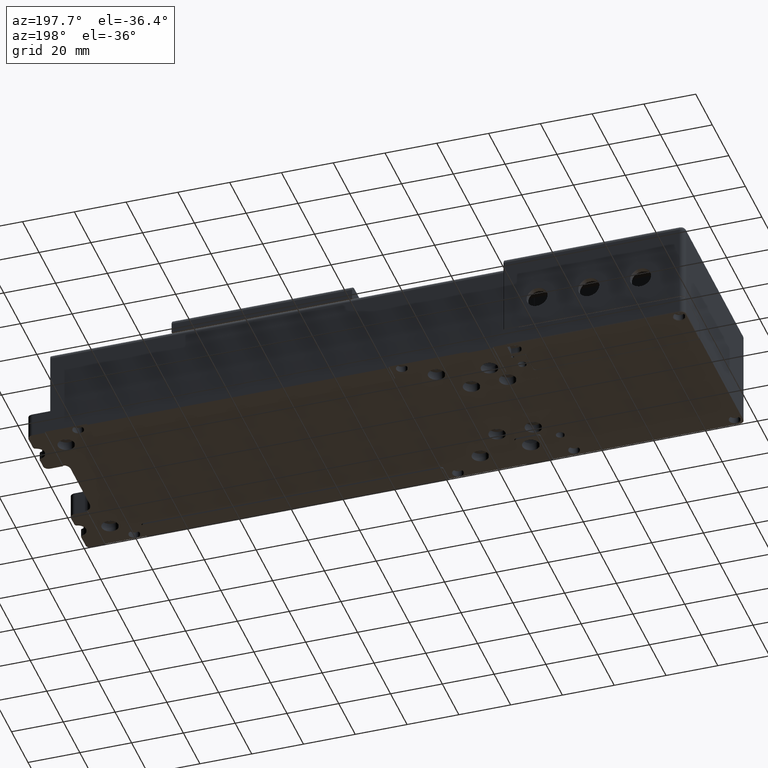
[diagram: clean part render]
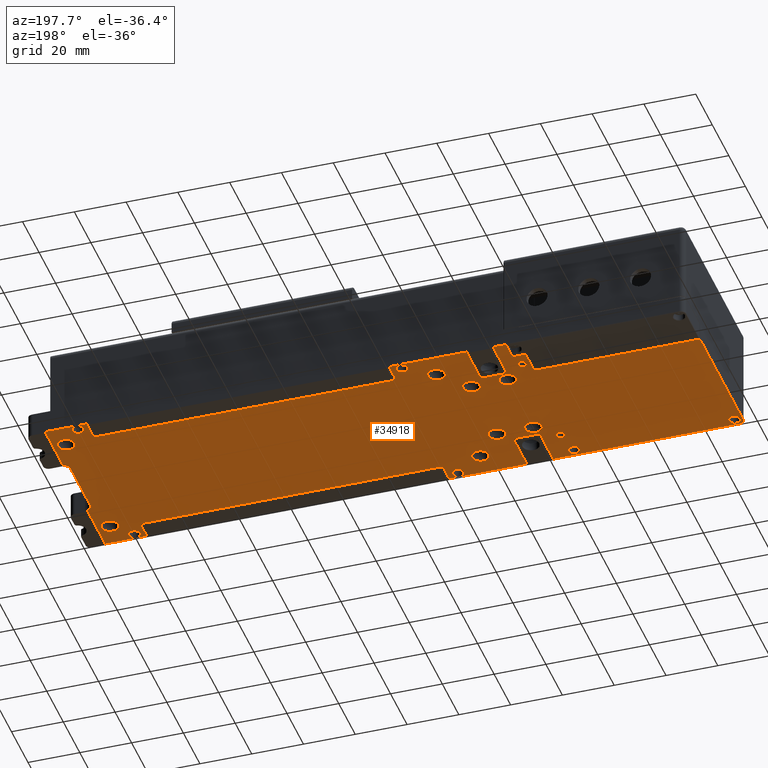
[diagram: same view with one face highlighted and labeled with its STEP entity id]
A machine part, auxiliary view. The second image highlights one B-rep face of the part: STEP entity #34918.
In plain terms, the highlighted planar face has unit normal (0, 0, 1).
Its self-contained STEP definition (entity closure, byte-faithful):
#144 = VERTEX_POINT ( 'NONE', #44678 ) ;
#219 = AXIS2_PLACEMENT_3D ( 'NONE', #2299, #44633, #50875 ) ;
#422 = CARTESIAN_POINT ( 'NONE',  ( -43.42525998140234833, -42.96919745025279980, -5.000000000000000000 ) ) ;
#440 = ORIENTED_EDGE ( 'NONE', *, *, #23017, .T. ) ;
#478 = CARTESIAN_POINT ( 'NONE',  ( 94.57474001859770851, -20.76919745025280051, -5.000000000000000000 ) ) ;
#527 = DIRECTION ( 'NONE',  ( 0.000000000000000000, 0.000000000000000000, -1.000000000000000000 ) ) ;
#918 = CARTESIAN_POINT ( 'NONE',  ( -70.42525998140229149, -29.96919745025279980, -5.000000000000000000 ) ) ;
#1089 = VERTEX_POINT ( 'NONE', #29169 ) ;
#1173 = CARTESIAN_POINT ( 'NONE',  ( -54.42525998140230570, -35.46919745025279980, -5.000000000000000000 ) ) ;
#1365 = CARTESIAN_POINT ( 'NONE',  ( -84.42525998140229149, 27.53080254974720020, -5.000000000000000000 ) ) ;
#1382 = DIRECTION ( 'NONE',  ( 0.000000000000000000, 0.000000000000000000, 1.000000000000000000 ) ) ;
#1425 = EDGE_CURVE ( 'NONE', #4892, #26271, #8951, .T. ) ;
#1427 = DIRECTION ( 'NONE',  ( -1.000000000000000000, 0.000000000000000000, 0.000000000000000000 ) ) ;
#1572 = CARTESIAN_POINT ( 'NONE',  ( -39.22525998140234549, -38.46919745025280690, -5.000000000000000000 ) ) ;
#1634 = VERTEX_POINT ( 'NONE', #25594 ) ;
#1639 = AXIS2_PLACEMENT_3D ( 'NONE', #63601, #47628, #4627 ) ;
#1708 = AXIS2_PLACEMENT_3D ( 'NONE', #52564, #5713, #26889 ) ;
#1741 = DIRECTION ( 'NONE',  ( -1.000000000000000000, 0.000000000000000000, 0.000000000000000000 ) ) ;
#1799 = CARTESIAN_POINT ( 'NONE',  ( -64.42525998140230570, 6.530802549747209973, -5.000000000000000000 ) ) ;
#1805 = VECTOR ( 'NONE', #63704, 1000.000000000000000 ) ;
#2065 = DIRECTION ( 'NONE',  ( 0.000000000000000000, 0.000000000000000000, -1.000000000000000000 ) ) ;
#2068 = CARTESIAN_POINT ( 'NONE',  ( 79.37474001859770567, 25.03080254974720020, -5.000000000000000000 ) ) ;
#2092 = CARTESIAN_POINT ( 'NONE',  ( 77.37474001859770567, -38.46919745025280690, -5.000000000000000000 ) ) ;
#2203 = EDGE_CURVE ( 'NONE', #21586, #24176, #15068, .T. ) ;
#2217 = ORIENTED_EDGE ( 'NONE', *, *, #67392, .T. ) ;
#2262 = AXIS2_PLACEMENT_3D ( 'NONE', #5020, #61948, #46655 ) ;
#2299 = CARTESIAN_POINT ( 'NONE',  ( 76.37474001859770567, 20.53080254974720020, -5.000000000000000000 ) ) ;
#2376 = CARTESIAN_POINT ( 'NONE',  ( -45.62525998140240091, -42.96919745025279980, -5.000000000000000000 ) ) ;
#2451 = CIRCLE ( 'NONE', #33516, 2.200000000000000622 ) ;
#2515 = AXIS2_PLACEMENT_3D ( 'NONE', #29027, #39779, #50534 ) ;
#2557 = VERTEX_POINT ( 'NONE', #43348 ) ;
#2616 = VERTEX_POINT ( 'NONE', #2376 ) ;
#2653 = FACE_BOUND ( 'NONE', #15962, .T. ) ;
#2739 = DIRECTION ( 'NONE',  ( -1.000000000000000000, 0.000000000000000000, 0.000000000000000000 ) ) ;
#2757 = CARTESIAN_POINT ( 'NONE',  ( -64.42525998140230570, -24.46919745025279980, -5.000000000000000000 ) ) ;
#2831 = VECTOR ( 'NONE', #39261, 1000.000000000000000 ) ;
#2888 = EDGE_CURVE ( 'NONE', #37987, #61376, #31485, .T. ) ;
#2950 = EDGE_CURVE ( 'NONE', #33482, #30816, #56126, .T. ) ;
#2951 = CARTESIAN_POINT ( 'NONE',  ( 77.37474001859770567, 20.53080254974720020, -5.000000000000000000 ) ) ;
#2954 = LINE ( 'NONE', #33857, #10187 ) ;
#3049 = CARTESIAN_POINT ( 'NONE',  ( -153.4252599814024904, 9.030802549747210861, -5.000000000000000000 ) ) ;
#3088 = DIRECTION ( 'NONE',  ( -1.000000000000000000, 0.000000000000000000, 0.000000000000000000 ) ) ;
#3259 = CIRCLE ( 'NONE', #56469, 3.000000000000002665 ) ;
#3598 = DIRECTION ( 'NONE',  ( 0.000000000000000000, -1.000000000000000000, 0.000000000000000000 ) ) ;
#3810 = EDGE_LOOP ( 'NONE', ( #4494, #6421 ) ) ;
#3859 = CIRCLE ( 'NONE', #18285, 3.250000000000002665 ) ;
#4024 = VERTEX_POINT ( 'NONE', #4356 ) ;
#4160 = EDGE_CURVE ( 'NONE', #20400, #49840, #68262, .T. ) ;
#4214 = CARTESIAN_POINT ( 'NONE',  ( 77.37474001859770567, 27.53080254974720020, -5.000000000000000000 ) ) ;
#4356 = CARTESIAN_POINT ( 'NONE',  ( -39.22525998140229575, 27.53080254974720020, -5.000000000000000000 ) ) ;
#4417 = DIRECTION ( 'NONE',  ( 0.000000000000000000, 0.000000000000000000, 1.000000000000000000 ) ) ;
#4424 = DIRECTION ( 'NONE',  ( -1.000000000000000000, 0.000000000000000000, 0.000000000000000000 ) ) ;
#4494 = ORIENTED_EDGE ( 'NONE', *, *, #40355, .F. ) ;
#4627 = DIRECTION ( 'NONE',  ( -1.000000000000000000, 0.000000000000000000, 0.000000000000000000 ) ) ;
#4632 = EDGE_CURVE ( 'NONE', #49965, #45408, #21750, .T. ) ;
#4835 = CARTESIAN_POINT ( 'NONE',  ( -78.42525998140240517, -28.96919745025279980, -5.000000000000000000 ) ) ;
#4892 = VERTEX_POINT ( 'NONE', #13597 ) ;
#4973 = AXIS2_PLACEMENT_3D ( 'NONE', #2757, #12507, #22914 ) ;
#5020 = CARTESIAN_POINT ( 'NONE',  ( -38.22525998140230286, 20.53080254974720020, -5.000000000000000000 ) ) ;
#5182 = EDGE_CURVE ( 'NONE', #54862, #60655, #38148, .T. ) ;
#5199 = CARTESIAN_POINT ( 'NONE',  ( -69.42525998140229149, 12.03080254974720020, -5.000000000000000000 ) ) ;
#5237 = CARTESIAN_POINT ( 'NONE',  ( -67.67525998140230570, 6.530802549747209973, -5.000000000000000000 ) ) ;
#5252 = EDGE_CURVE ( 'NONE', #65141, #8254, #7955, .T. ) ;
#5310 = ORIENTED_EDGE ( 'NONE', *, *, #11199, .F. ) ;
#5481 = CARTESIAN_POINT ( 'NONE',  ( 77.37474001859770567, -45.46919745025279980, -5.000000000000000000 ) ) ;
#5495 = DIRECTION ( 'NONE',  ( 0.000000000000000000, 0.000000000000000000, 1.000000000000000000 ) ) ;
#5570 = DIRECTION ( 'NONE',  ( 0.000000000000000000, 0.000000000000000000, -1.000000000000000000 ) ) ;
#5622 = AXIS2_PLACEMENT_3D ( 'NONE', #918, #54014, #59906 ) ;
#5637 = CARTESIAN_POINT ( 'NONE',  ( -45.62525998140230143, 25.03080254974720020, -5.000000000000000000 ) ) ;
#5671 = AXIS2_PLACEMENT_3D ( 'NONE', #66426, #55305, #44542 ) ;
#5713 = DIRECTION ( 'NONE',  ( 0.000000000000000000, 0.000000000000000000, -1.000000000000000000 ) ) ;
#5834 = DIRECTION ( 'NONE',  ( 1.000000000000000000, 0.000000000000000000, 1.749495427353365070E-17 ) ) ;
#5914 = DIRECTION ( 'NONE',  ( -3.469446951953610245E-15, -1.000000000000000000, 0.000000000000000000 ) ) ;
#5917 = EDGE_CURVE ( 'NONE', #14842, #2616, #46150, .T. ) ;
#6024 = CARTESIAN_POINT ( 'NONE',  ( -84.42525998140229149, 19.53080254974720020, -5.000000000000000000 ) ) ;
#6142 = EDGE_LOOP ( 'NONE', ( #42419, #52542 ) ) ;
#6179 = LINE ( 'NONE', #54408, #24735 ) ;
#6227 = VECTOR ( 'NONE', #46752, 1000.000000000000000 ) ;
#6402 = AXIS2_PLACEMENT_3D ( 'NONE', #30128, #4417, #61339 ) ;
#6421 = ORIENTED_EDGE ( 'NONE', *, *, #60935, .F. ) ;
#6729 = EDGE_CURVE ( 'NONE', #21586, #53457, #38769, .T. ) ;
#6826 = EDGE_CURVE ( 'NONE', #22875, #24863, #62903, .T. ) ;
#6941 = EDGE_LOOP ( 'NONE', ( #24558, #33334 ) ) ;
#6959 = DIRECTION ( 'NONE',  ( 0.000000000000000000, 0.000000000000000000, -1.000000000000000000 ) ) ;
#6989 = AXIS2_PLACEMENT_3D ( 'NONE', #23669, #27838, #7017 ) ;
#6991 = CARTESIAN_POINT ( 'NONE',  ( -88.42525998140230570, -42.46919745025279980, -5.000000000000000000 ) ) ;
#7017 = DIRECTION ( 'NONE',  ( 1.000000000000000000, 0.000000000000000000, 0.000000000000000000 ) ) ;
#7070 = ORIENTED_EDGE ( 'NONE', *, *, #17478, .F. ) ;
#7119 = EDGE_CURVE ( 'NONE', #61922, #18829, #68515, .T. ) ;
#7267 = EDGE_CURVE ( 'NONE', #13987, #1634, #34179, .T. ) ;
#7389 = CIRCLE ( 'NONE', #64995, 1.000000000000000888 ) ;
#7393 = CIRCLE ( 'NONE', #62772, 1.649999999999998579 ) ;
#7481 = ORIENTED_EDGE ( 'NONE', *, *, #52628, .F. ) ;
#7618 = AXIS2_PLACEMENT_3D ( 'NONE', #1173, #31147, #4424 ) ;
#7675 = DIRECTION ( 'NONE',  ( 0.000000000000000000, 0.000000000000000000, 1.000000000000000000 ) ) ;
#7955 = LINE ( 'NONE', #50965, #60462 ) ;
#8002 = EDGE_CURVE ( 'NONE', #24863, #22875, #40852, .T. ) ;
#8124 = ORIENTED_EDGE ( 'NONE', *, *, #18989, .F. ) ;
#8206 = EDGE_CURVE ( 'NONE', #67625, #11576, #53076, .T. ) ;
#8230 = DIRECTION ( 'NONE',  ( 0.000000000000000000, 0.000000000000000000, -1.000000000000000000 ) ) ;
#8254 = VERTEX_POINT ( 'NONE', #41543 ) ;
#8293 = ORIENTED_EDGE ( 'NONE', *, *, #66759, .F. ) ;
#8567 = FACE_OUTER_BOUND ( 'NONE', #24216, .T. ) ;
#8853 = LINE ( 'NONE', #57752, #13128 ) ;
#8951 = LINE ( 'NONE', #40862, #13883 ) ;
#8958 = VECTOR ( 'NONE', #19475, 1000.000000000000000 ) ;
#8984 = CARTESIAN_POINT ( 'NONE',  ( -88.07525998140229717, 14.03080254974720020, -5.000000000000000000 ) ) ;
#9056 = ORIENTED_EDGE ( 'NONE', *, *, #54215, .F. ) ;
#9215 = ORIENTED_EDGE ( 'NONE', *, *, #8002, .F. ) ;
#9396 = EDGE_CURVE ( 'NONE', #67876, #29121, #17826, .T. ) ;
#9701 = CARTESIAN_POINT ( 'NONE',  ( 88.57474001859770851, -35.46919745025279980, -5.000000000000000000 ) ) ;
#9803 = CARTESIAN_POINT ( 'NONE',  ( 83.77474001859771136, 25.03080254974720020, -5.000000000000000000 ) ) ;
#9882 = EDGE_CURVE ( 'NONE', #30816, #33482, #30073, .T. ) ;
#9888 = EDGE_CURVE ( 'NONE', #24263, #21564, #65523, .T. ) ;
#10187 = VECTOR ( 'NONE', #44599, 1000.000000000000000 ) ;
#10205 = CARTESIAN_POINT ( 'NONE',  ( 77.37474001859770567, 27.53080254974720020, -5.000000000000000000 ) ) ;
#10237 = VERTEX_POINT ( 'NONE', #38835 ) ;
#10329 = DIRECTION ( 'NONE',  ( 0.000000000000000000, 0.000000000000000000, 1.000000000000000000 ) ) ;
#10462 = ORIENTED_EDGE ( 'NONE', *, *, #65325, .F. ) ;
#10656 = AXIS2_PLACEMENT_3D ( 'NONE', #6024, #34814, #50778 ) ;
#10737 = ORIENTED_EDGE ( 'NONE', *, *, #22115, .F. ) ;
#10760 = VERTEX_POINT ( 'NONE', #34919 ) ;
#10793 = CARTESIAN_POINT ( 'NONE',  ( -43.42525998140229859, 25.03080254974720020, -5.000000000000000000 ) ) ;
#10922 = AXIS2_PLACEMENT_3D ( 'NONE', #42741, #48278, #1427 ) ;
#11122 = ORIENTED_EDGE ( 'NONE', *, *, #9396, .T. ) ;
#11199 = EDGE_CURVE ( 'NONE', #14679, #65576, #29989, .T. ) ;
#11260 = AXIS2_PLACEMENT_3D ( 'NONE', #41261, #61750, #50988 ) ;
#11303 = VERTEX_POINT ( 'NONE', #57374 ) ;
#11415 = CARTESIAN_POINT ( 'NONE',  ( -89.42525998140230570, 27.53080254974720020, -5.000000000000000000 ) ) ;
#11576 = VERTEX_POINT ( 'NONE', #60513 ) ;
#11631 = DIRECTION ( 'NONE',  ( 0.000000000000000000, 0.000000000000000000, 1.000000000000000000 ) ) ;
#11818 = CARTESIAN_POINT ( 'NONE',  ( -86.42525998140229149, 14.03080254974720020, -5.000000000000000000 ) ) ;
#11900 = ORIENTED_EDGE ( 'NONE', *, *, #46593, .T. ) ;
#12120 = CARTESIAN_POINT ( 'NONE',  ( 81.57474001859770851, -42.96919745025279980, -5.000000000000000000 ) ) ;
#12129 = CIRCLE ( 'NONE', #15447, 3.250000000000002665 ) ;
#12236 = DIRECTION ( 'NONE',  ( 0.000000000000000000, 0.000000000000000000, -1.000000000000000000 ) ) ;
#12282 = AXIS2_PLACEMENT_3D ( 'NONE', #23840, #34926, #28697 ) ;
#12395 = DIRECTION ( 'NONE',  ( 1.000000000000000000, 0.000000000000000000, 0.000000000000000000 ) ) ;
#12507 = DIRECTION ( 'NONE',  ( 0.000000000000000000, 0.000000000000000000, -1.000000000000000000 ) ) ;
#12747 = CARTESIAN_POINT ( 'NONE',  ( -41.22525998140230286, 25.03080254974720020, -5.000000000000000000 ) ) ;
#13096 = FACE_BOUND ( 'NONE', #39231, .T. ) ;
#13128 = VECTOR ( 'NONE', #19625, 1000.000000000000000 ) ;
#13209 = CARTESIAN_POINT ( 'NONE',  ( -84.92525998140229149, 19.53080254974720020, -5.000000000000000000 ) ) ;
#13269 = DIRECTION ( 'NONE',  ( -1.000000000000000000, 0.000000000000000000, 0.000000000000000000 ) ) ;
#13286 = CIRCLE ( 'NONE', #43183, 2.199999999999993516 ) ;
#13526 = CARTESIAN_POINT ( 'NONE',  ( -54.42525998140230570, -35.46919745025279980, -5.000000000000000000 ) ) ;
#13597 = CARTESIAN_POINT ( 'NONE',  ( -69.42525998140229149, -45.46919745025279980, -5.000000000000000000 ) ) ;
#13883 = VECTOR ( 'NONE', #40520, 1000.000000000000000 ) ;
#13987 = VERTEX_POINT ( 'NONE', #32206 ) ;
#14059 = ORIENTED_EDGE ( 'NONE', *, *, #6826, .F. ) ;
#14470 = DIRECTION ( 'NONE',  ( -1.000000000000000000, 7.438779914137249619E-18, 0.000000000000000000 ) ) ;
#14550 = CIRCLE ( 'NONE', #57734, 3.000000000000002665 ) ;
#14570 = CARTESIAN_POINT ( 'NONE',  ( 93.57474001859770851, 5.830802549747209795, -5.000000000000000000 ) ) ;
#14679 = VERTEX_POINT ( 'NONE', #22581 ) ;
#14724 = DIRECTION ( 'NONE',  ( 0.000000000000000000, -1.000000000000000000, 0.000000000000000000 ) ) ;
#14778 = CIRCLE ( 'NONE', #22555, 3.250000000000002665 ) ;
#14842 = VERTEX_POINT ( 'NONE', #34698 ) ;
#14863 = ORIENTED_EDGE ( 'NONE', *, *, #36584, .F. ) ;
#14949 = CARTESIAN_POINT ( 'NONE',  ( -78.42525998140230570, 6.530802549747209973, -5.000000000000000000 ) ) ;
#15068 = CIRCLE ( 'NONE', #10656, 0.5000000000000004441 ) ;
#15417 = CARTESIAN_POINT ( 'NONE',  ( -79.42525998140240517, -45.46919745025279980, -5.000000000000000000 ) ) ;
#15447 = AXIS2_PLACEMENT_3D ( 'NONE', #9701, #36747, #35381 ) ;
#15535 = CARTESIAN_POINT ( 'NONE',  ( 79.37474001859770567, -42.96919745025279980, -5.000000000000000000 ) ) ;
#15617 = EDGE_LOOP ( 'NONE', ( #65170, #27322 ) ) ;
#15735 = DIRECTION ( 'NONE',  ( 0.000000000000000000, 0.000000000000000000, -1.000000000000000000 ) ) ;
#15837 = CARTESIAN_POINT ( 'NONE',  ( 93.57474001859770851, 5.830802549747209795, -5.000000000000000000 ) ) ;
#15871 = CARTESIAN_POINT ( 'NONE',  ( 93.57474001859770851, -23.76919745025280051, -5.000000000000000000 ) ) ;
#15901 = EDGE_CURVE ( 'NONE', #144, #26627, #40155, .T. ) ;
#15913 = CARTESIAN_POINT ( 'NONE',  ( -88.42525998140230570, -42.46919745025279980, -5.000000000000000000 ) ) ;
#15935 = VERTEX_POINT ( 'NONE', #50528 ) ;
#15957 = VERTEX_POINT ( 'NONE', #23484 ) ;
#15962 = EDGE_LOOP ( 'NONE', ( #7481, #8293 ) ) ;
#16240 = EDGE_LOOP ( 'NONE', ( #56579, #14863 ) ) ;
#16294 = ORIENTED_EDGE ( 'NONE', *, *, #56169, .T. ) ;
#16505 = EDGE_LOOP ( 'NONE', ( #10737, #67732 ) ) ;
#16896 = CARTESIAN_POINT ( 'NONE',  ( -78.42525998140230570, 6.530802549747209973, -5.000000000000000000 ) ) ;
#16903 = VERTEX_POINT ( 'NONE', #46868 ) ;
#17037 = CARTESIAN_POINT ( 'NONE',  ( 77.37474001859759198, -45.46919745025279980, -5.000000000000000000 ) ) ;
#17054 = VERTEX_POINT ( 'NONE', #58988 ) ;
#17183 = CARTESIAN_POINT ( 'NONE',  ( -78.42525998140230570, -24.46919745025279980, -5.000000000000000000 ) ) ;
#17255 = CIRCLE ( 'NONE', #37205, 3.250000000000002665 ) ;
#17331 = EDGE_CURVE ( 'NONE', #11303, #55314, #66614, .T. ) ;
#17350 = DIRECTION ( 'NONE',  ( 1.000000000000000000, 0.000000000000000000, 1.749495427353365070E-17 ) ) ;
#17478 = EDGE_CURVE ( 'NONE', #21564, #24263, #19315, .T. ) ;
#17670 = AXIS2_PLACEMENT_3D ( 'NONE', #64517, #64171, #31566 ) ;
#17826 = CIRCLE ( 'NONE', #5622, 1.000000000000000888 ) ;
#18035 = VERTEX_POINT ( 'NONE', #4214 ) ;
#18141 = CARTESIAN_POINT ( 'NONE',  ( -78.42525998140240517, -29.96919745025279980, -5.000000000000000000 ) ) ;
#18192 = ORIENTED_EDGE ( 'NONE', *, *, #1425, .F. ) ;
#18248 = VERTEX_POINT ( 'NONE', #5237 ) ;
#18285 = AXIS2_PLACEMENT_3D ( 'NONE', #29119, #50268, #2739 ) ;
#18330 = EDGE_CURVE ( 'NONE', #10760, #55273, #64822, .T. ) ;
#18456 = CARTESIAN_POINT ( 'NONE',  ( -81.67525998140230570, 6.530802549747209973, -5.000000000000000000 ) ) ;
#18647 = FACE_BOUND ( 'NONE', #3810, .T. ) ;
#18672 = ORIENTED_EDGE ( 'NONE', *, *, #55927, .T. ) ;
#18815 = CARTESIAN_POINT ( 'NONE',  ( 93.57474001859770851, 27.53080254974720020, -5.000000000000000000 ) ) ;
#18829 = VERTEX_POINT ( 'NONE', #28714 ) ;
#18862 = VECTOR ( 'NONE', #14470, 1000.000000000000000 ) ;
#18925 = VECTOR ( 'NONE', #54268, 1000.000000000000000 ) ;
#18989 = EDGE_CURVE ( 'NONE', #47203, #37435, #31447, .T. ) ;
#19315 = CIRCLE ( 'NONE', #61397, 3.250000000000002665 ) ;
#19428 = ORIENTED_EDGE ( 'NONE', *, *, #20543, .F. ) ;
#19475 = DIRECTION ( 'NONE',  ( 1.000000000000000000, 0.000000000000000000, 0.000000000000000000 ) ) ;
#19625 = DIRECTION ( 'NONE',  ( 0.000000000000000000, -1.000000000000000000, 0.000000000000000000 ) ) ;
#19901 = AXIS2_PLACEMENT_3D ( 'NONE', #28446, #39544, #23944 ) ;
#19966 = CIRCLE ( 'NONE', #44365, 3.250000000000002665 ) ;
#20281 = DIRECTION ( 'NONE',  ( -1.000000000000000000, 0.000000000000000000, 0.000000000000000000 ) ) ;
#20400 = VERTEX_POINT ( 'NONE', #48429 ) ;
#20543 = EDGE_CURVE ( 'NONE', #67876, #4892, #8853, .T. ) ;
#20589 = DIRECTION ( 'NONE',  ( -1.000000000000000000, 0.000000000000000000, 0.000000000000000000 ) ) ;
#20595 = DIRECTION ( 'NONE',  ( 0.000000000000000000, 0.000000000000000000, 1.000000000000000000 ) ) ;
#20764 = ORIENTED_EDGE ( 'NONE', *, *, #21571, .T. ) ;
#20995 = ORIENTED_EDGE ( 'NONE', *, *, #37047, .F. ) ;
#21026 = VERTEX_POINT ( 'NONE', #9803 ) ;
#21061 = CARTESIAN_POINT ( 'NONE',  ( 88.57474001859770851, -35.46919745025279980, -5.000000000000000000 ) ) ;
#21068 = CARTESIAN_POINT ( 'NONE',  ( 83.77474001859771136, -42.96919745025279980, -5.000000000000000000 ) ) ;
#21135 = CARTESIAN_POINT ( 'NONE',  ( -84.77525998140230001, -31.96919745025280335, -5.000000000000000000 ) ) ;
#21205 = VERTEX_POINT ( 'NONE', #58348 ) ;
#21261 = VECTOR ( 'NONE', #3598, 1000.000000000000000 ) ;
#21293 = DIRECTION ( 'NONE',  ( -1.000000000000000000, 0.000000000000000000, 0.000000000000000000 ) ) ;
#21496 = CARTESIAN_POINT ( 'NONE',  ( -148.2252599814023881, -42.46919745025279980, -5.000000000000000000 ) ) ;
#21553 = DIRECTION ( 'NONE',  ( -1.000000000000000000, 0.000000000000000000, 0.000000000000000000 ) ) ;
#21564 = VERTEX_POINT ( 'NONE', #57156 ) ;
#21571 = EDGE_CURVE ( 'NONE', #63081, #60441, #39653, .T. ) ;
#21586 = VERTEX_POINT ( 'NONE', #35655 ) ;
#21593 = CARTESIAN_POINT ( 'NONE',  ( -75.17525998140230570, 6.530802549747209973, -5.000000000000000000 ) ) ;
#21745 = CARTESIAN_POINT ( 'NONE',  ( 85.32474001859770851, 17.53080254974720020, -5.000000000000000000 ) ) ;
#21750 = CIRCLE ( 'NONE', #61664, 1.649999999999998579 ) ;
#21749 = CIRCLE ( 'NONE', #47189, 1.649999999999998579 ) ;
#21870 = CIRCLE ( 'NONE', #49530, 2.199999999999993516 ) ;
#22115 = EDGE_CURVE ( 'NONE', #2616, #14842, #41983, .T. ) ;
#22116 = CARTESIAN_POINT ( 'NONE',  ( -78.42525998140230570, 12.03080254974720020, -5.000000000000000000 ) ) ;
#22246 = LINE ( 'NONE', #15417, #52121 ) ;
#22389 = CARTESIAN_POINT ( 'NONE',  ( -79.42525998140240517, -45.46919745025279980, -5.000000000000000000 ) ) ;
#22452 = ORIENTED_EDGE ( 'NONE', *, *, #24438, .F. ) ;
#22506 = EDGE_CURVE ( 'NONE', #23133, #18248, #64172, .T. ) ;
#22555 = AXIS2_PLACEMENT_3D ( 'NONE', #13526, #2065, #54472 ) ;
#22581 = CARTESIAN_POINT ( 'NONE',  ( -69.42525998140229149, 27.53080254974720020, -5.000000000000000000 ) ) ;
#22846 = CIRCLE ( 'NONE', #60529, 3.250000000000002665 ) ;
#22867 = DIRECTION ( 'NONE',  ( -1.000000000000000000, 0.000000000000000000, 0.000000000000000000 ) ) ;
#22875 = VERTEX_POINT ( 'NONE', #15535 ) ;
#22914 = DIRECTION ( 'NONE',  ( -1.000000000000000000, 0.000000000000000000, 0.000000000000000000 ) ) ;
#23011 = DIRECTION ( 'NONE',  ( 1.000000000000000000, 0.000000000000000000, 0.000000000000000000 ) ) ;
#23017 = EDGE_CURVE ( 'NONE', #11303, #65576, #54253, .T. ) ;
#23096 = CARTESIAN_POINT ( 'NONE',  ( 93.57474001859770851, -23.76919745025280051, -5.000000000000000000 ) ) ;
#23133 = VERTEX_POINT ( 'NONE', #30862 ) ;
#23163 = CARTESIAN_POINT ( 'NONE',  ( -153.4252599814024904, 26.03080254974719665, -5.000000000000000000 ) ) ;
#23484 = CARTESIAN_POINT ( 'NONE',  ( 85.32474001859770851, -35.46919745025279980, -5.000000000000000000 ) ) ;
#23510 = LINE ( 'NONE', #23163, #59141 ) ;
#23537 = EDGE_CURVE ( 'NONE', #144, #47646, #36307, .T. ) ;
#23669 = CARTESIAN_POINT ( 'NONE',  ( -90.42525998140230570, 10.03080254974721974, -5.000000000000000000 ) ) ;
#23727 = CARTESIAN_POINT ( 'NONE',  ( 91.57474001859770851, 27.53080254974720020, -5.000000000000000000 ) ) ;
#23840 = CARTESIAN_POINT ( 'NONE',  ( -153.4252599814024904, 26.03080254974719665, -5.000000000000000000 ) ) ;
#23847 = CIRCLE ( 'NONE', #62625, 2.199999999999993516 ) ;
#23855 = CARTESIAN_POINT ( 'NONE',  ( -43.42525998140229859, 25.03080254974720020, -5.000000000000000000 ) ) ;
#23912 = DIRECTION ( 'NONE',  ( 1.000000000000000000, 0.000000000000000000, 0.000000000000000000 ) ) ;
#23944 = DIRECTION ( 'NONE',  ( 1.000000000000000000, 0.000000000000000000, 0.000000000000000000 ) ) ;
#24053 = EDGE_CURVE ( 'NONE', #35172, #57569, #22246, .T. ) ;
#24140 = LINE ( 'NONE', #45282, #28189 ) ;
#24176 = VERTEX_POINT ( 'NONE', #13209 ) ;
#24216 = EDGE_LOOP ( 'NONE', ( #20995, #42209, #63513, #20764, #54527, #18192, #19428, #11122, #50498, #11900, #42596, #22452, #18672, #27475, #49833, #62898, #39975, #37419, #25209, #58194, #49103, #66474, #2217, #60408, #440, #5310, #60651, #64350, #32243, #29034, #31997, #36356, #49240, #43295, #8124, #26972, #66869, #38714, #36971, #66361, #46182 ) ) ;
#24263 = VERTEX_POINT ( 'NONE', #34703 ) ;
#24438 = EDGE_CURVE ( 'NONE', #27363, #35172, #6179, .T. ) ;
#24545 = DIRECTION ( 'NONE',  ( 0.000000000000000000, 0.000000000000000000, -1.000000000000000000 ) ) ;
#24558 = ORIENTED_EDGE ( 'NONE', *, *, #57360, .F. ) ;
#24566 = CARTESIAN_POINT ( 'NONE',  ( 94.57474001859770851, -23.76919745025280051, -5.000000000000000000 ) ) ;
#24735 = VECTOR ( 'NONE', #5834, 1000.000000000000000 ) ;
#24863 = VERTEX_POINT ( 'NONE', #21068 ) ;
#25209 = ORIENTED_EDGE ( 'NONE', *, *, #2203, .F. ) ;
#25594 = CARTESIAN_POINT ( 'NONE',  ( 91.57474001859770851, 2.830802549747215124, -5.000000000000000000 ) ) ;
#25745 = ORIENTED_EDGE ( 'NONE', *, *, #34413, .F. ) ;
#26211 = AXIS2_PLACEMENT_3D ( 'NONE', #16896, #55029, #54689 ) ;
#26254 = EDGE_LOOP ( 'NONE', ( #9056, #25745 ) ) ;
#26271 = VERTEX_POINT ( 'NONE', #49041 ) ;
#26276 = CARTESIAN_POINT ( 'NONE',  ( 93.57474001859770851, 27.53080254974720020, -5.000000000000000000 ) ) ;
#26326 = CARTESIAN_POINT ( 'NONE',  ( -79.42525998140240517, -29.96919745025279980, -5.000000000000000000 ) ) ;
#26470 = EDGE_CURVE ( 'NONE', #40378, #41291, #38271, .T. ) ;
#26551 = EDGE_CURVE ( 'NONE', #58821, #33944, #21749, .T. ) ;
#26627 = VERTEX_POINT ( 'NONE', #2951 ) ;
#26670 = DIRECTION ( 'NONE',  ( 1.000000000000000000, 0.000000000000000000, 0.000000000000000000 ) ) ;
#26889 = DIRECTION ( 'NONE',  ( -1.000000000000000000, 0.000000000000000000, 0.000000000000000000 ) ) ;
#26972 = ORIENTED_EDGE ( 'NONE', *, *, #47633, .T. ) ;
#27322 = ORIENTED_EDGE ( 'NONE', *, *, #9882, .F. ) ;
#27329 = DIRECTION ( 'NONE',  ( 0.000000000000000000, 1.000000000000000000, 0.000000000000000000 ) ) ;
#27363 = VERTEX_POINT ( 'NONE', #58011 ) ;
#27475 = ORIENTED_EDGE ( 'NONE', *, *, #57665, .F. ) ;
#27838 = DIRECTION ( 'NONE',  ( 0.000000000000000000, 0.000000000000000000, 1.000000000000000000 ) ) ;
#27926 = DIRECTION ( 'NONE',  ( 0.000000000000000000, 0.000000000000000000, -1.000000000000000000 ) ) ;
#27987 = DIRECTION ( 'NONE',  ( 0.000000000000000000, 1.000000000000000000, 0.000000000000000000 ) ) ;
#28010 = DIRECTION ( 'NONE',  ( 1.224646799147351975E-16, -1.000000000000000000, 0.000000000000000000 ) ) ;
#28085 = VECTOR ( 'NONE', #62072, 1000.000000000000000 ) ;
#28189 = VECTOR ( 'NONE', #66472, 1000.000000000000000 ) ;
#28280 = AXIS2_PLACEMENT_3D ( 'NONE', #64977, #43801, #13269 ) ;
#28446 = CARTESIAN_POINT ( 'NONE',  ( -70.42525998140229149, 12.03080254974720020, -5.000000000000000000 ) ) ;
#28562 = VECTOR ( 'NONE', #28620, 1000.000000000000000 ) ;
#28620 = DIRECTION ( 'NONE',  ( 0.000000000000000000, 1.000000000000000000, 0.000000000000000000 ) ) ;
#28697 = DIRECTION ( 'NONE',  ( 1.000000000000000000, 0.000000000000000000, 0.000000000000000000 ) ) ;
#28714 = CARTESIAN_POINT ( 'NONE',  ( 76.37474001859770567, -37.46919745025279980, -5.000000000000000000 ) ) ;
#29027 = CARTESIAN_POINT ( 'NONE',  ( -150.4252599814024904, -42.46919745025279980, -5.000000000000000000 ) ) ;
#29032 = FACE_BOUND ( 'NONE', #16505, .T. ) ;
#29034 = ORIENTED_EDGE ( 'NONE', *, *, #23537, .F. ) ;
#29099 = CARTESIAN_POINT ( 'NONE',  ( -70.42525998140229149, -28.96919745025279980, -5.000000000000000000 ) ) ;
#29105 = CARTESIAN_POINT ( 'NONE',  ( 77.37474001859770567, -37.46919745025279980, -5.000000000000000000 ) ) ;
#29119 = CARTESIAN_POINT ( 'NONE',  ( -54.42525998140230570, 17.53080254974720020, -5.000000000000000000 ) ) ;
#29121 = VERTEX_POINT ( 'NONE', #29099 ) ;
#29169 = CARTESIAN_POINT ( 'NONE',  ( -86.22525998140230286, -42.46919745025279980, -5.000000000000000000 ) ) ;
#29305 = CARTESIAN_POINT ( 'NONE',  ( 91.57474001859770851, 26.03080254974719665, -5.000000000000000000 ) ) ;
#29382 = FACE_BOUND ( 'NONE', #26254, .T. ) ;
#29826 = CARTESIAN_POINT ( 'NONE',  ( -69.42525998140229149, 11.03080254974720020, -5.000000000000000000 ) ) ;
#29989 = LINE ( 'NONE', #40381, #21261 ) ;
#30073 = CIRCLE ( 'NONE', #47776, 3.250000000000002665 ) ;
#30128 = CARTESIAN_POINT ( 'NONE',  ( -38.22525998140235259, -38.46919745025280690, -5.000000000000000000 ) ) ;
#30816 = VERTEX_POINT ( 'NONE', #21593 ) ;
#30862 = CARTESIAN_POINT ( 'NONE',  ( -61.17525998140230570, 6.530802549747209973, -5.000000000000000000 ) ) ;
#31064 = CARTESIAN_POINT ( 'NONE',  ( -89.42525998140230570, 19.53080254974720020, -5.000000000000000000 ) ) ;
#31147 = DIRECTION ( 'NONE',  ( 0.000000000000000000, 0.000000000000000000, -1.000000000000000000 ) ) ;
#31223 = DIRECTION ( 'NONE',  ( -1.000000000000000000, 0.000000000000000000, 0.000000000000000000 ) ) ;
#31447 = LINE ( 'NONE', #15837, #1805 ) ;
#31485 = LINE ( 'NONE', #15871, #6227 ) ;
#31489 = DIRECTION ( 'NONE',  ( 1.000000000000000000, 0.000000000000000000, 0.000000000000000000 ) ) ;
#31566 = DIRECTION ( 'NONE',  ( -1.000000000000000000, 0.000000000000000000, 0.000000000000000000 ) ) ;
#31739 = EDGE_CURVE ( 'NONE', #62608, #18035, #43857, .T. ) ;
#31997 = ORIENTED_EDGE ( 'NONE', *, *, #15901, .T. ) ;
#32206 = CARTESIAN_POINT ( 'NONE',  ( 91.57474001859770851, -20.76919745025280051, -5.000000000000000000 ) ) ;
#32243 = ORIENTED_EDGE ( 'NONE', *, *, #65176, .T. ) ;
#32346 = EDGE_CURVE ( 'NONE', #52707, #29121, #40280, .T. ) ;
#32527 = ORIENTED_EDGE ( 'NONE', *, *, #18330, .F. ) ;
#32742 = CIRCLE ( 'NONE', #28280, 2.200000000000007283 ) ;
#32958 = CARTESIAN_POINT ( 'NONE',  ( -83.42525998140230570, -45.46919745025279980, -5.000000000000000000 ) ) ;
#33145 = DIRECTION ( 'NONE',  ( -1.000000000000000000, 0.000000000000000000, 0.000000000000000000 ) ) ;
#33277 = DIRECTION ( 'NONE',  ( 0.000000000000000000, 0.000000000000000000, -1.000000000000000000 ) ) ;
#33334 = ORIENTED_EDGE ( 'NONE', *, *, #8206, .F. ) ;
#33421 = DIRECTION ( 'NONE',  ( 0.000000000000000000, 0.000000000000000000, 1.000000000000000000 ) ) ;
#33463 = VECTOR ( 'NONE', #48528, 1000.000000000000000 ) ;
#33482 = VERTEX_POINT ( 'NONE', #18456 ) ;
#33516 = AXIS2_PLACEMENT_3D ( 'NONE', #23855, #8230, #20281 ) ;
#33857 = CARTESIAN_POINT ( 'NONE',  ( 91.57474001859770851, 27.53080254974720020, -5.000000000000000000 ) ) ;
#33888 = LINE ( 'NONE', #55042, #40622 ) ;
#33902 = FACE_BOUND ( 'NONE', #67209, .T. ) ;
#33944 = VERTEX_POINT ( 'NONE', #8984 ) ;
#34011 = CARTESIAN_POINT ( 'NONE',  ( -88.07525998140229717, -31.96919745025280335, -5.000000000000000000 ) ) ;
#34179 = LINE ( 'NONE', #29305, #28562 ) ;
#34254 = FACE_BOUND ( 'NONE', #6142, .T. ) ;
#34395 = DIRECTION ( 'NONE',  ( 1.000000000000000000, 0.000000000000000000, 0.000000000000000000 ) ) ;
#34413 = EDGE_CURVE ( 'NONE', #47465, #2557, #44615, .T. ) ;
#34492 = EDGE_CURVE ( 'NONE', #17054, #16903, #36899, .T. ) ;
#34530 = ORIENTED_EDGE ( 'NONE', *, *, #4160, .F. ) ;
#34543 = EDGE_CURVE ( 'NONE', #18248, #23133, #19966, .T. ) ;
#34698 = CARTESIAN_POINT ( 'NONE',  ( -41.22525998140234549, -42.96919745025279980, -5.000000000000000000 ) ) ;
#34703 = CARTESIAN_POINT ( 'NONE',  ( -81.67525998140230570, -24.46919745025279980, -5.000000000000000000 ) ) ;
#34715 = EDGE_CURVE ( 'NONE', #37435, #62608, #66353, .T. ) ;
#34814 = DIRECTION ( 'NONE',  ( 0.000000000000000000, 0.000000000000000000, -1.000000000000000000 ) ) ;
#34918 = ADVANCED_FACE ( 'NONE', ( #29032, #66868, #65825, #34254, #50887, #13096, #18647, #54714, #49509, #33902, #55403, #50183, #29382, #45334, #2653, #55057, #8567 ), #65479, .F. ) ;
#34919 = CARTESIAN_POINT ( 'NONE',  ( -67.67525998140230570, -24.46919745025279980, -5.000000000000000000 ) ) ;
#34926 = DIRECTION ( 'NONE',  ( 0.000000000000000000, 0.000000000000000000, 1.000000000000000000 ) ) ;
#35081 = CARTESIAN_POINT ( 'NONE',  ( -69.42525998140229149, -28.96919745025279980, -5.000000000000000000 ) ) ;
#35172 = VERTEX_POINT ( 'NONE', #22389 ) ;
#35293 = CARTESIAN_POINT ( 'NONE',  ( 77.37474001859770567, 19.53080254974720020, -5.000000000000000000 ) ) ;
#35381 = DIRECTION ( 'NONE',  ( -1.000000000000000000, 0.000000000000000000, 0.000000000000000000 ) ) ;
#35430 = EDGE_LOOP ( 'NONE', ( #32527, #36357 ) ) ;
#35655 = CARTESIAN_POINT ( 'NONE',  ( -84.42525998140229149, 20.03080254974720020, -5.000000000000000000 ) ) ;
#36243 = VECTOR ( 'NONE', #27329, 1000.000000000000000 ) ;
#36284 = ORIENTED_EDGE ( 'NONE', *, *, #4632, .T. ) ;
#36307 = LINE ( 'NONE', #35293, #18862 ) ;
#36356 = ORIENTED_EDGE ( 'NONE', *, *, #55638, .F. ) ;
#36357 = ORIENTED_EDGE ( 'NONE', *, *, #52875, .F. ) ;
#36584 = EDGE_CURVE ( 'NONE', #41291, #40378, #2451, .T. ) ;
#36644 = CARTESIAN_POINT ( 'NONE',  ( -78.42525998140230570, 11.03080254974720020, -5.000000000000000000 ) ) ;
#36699 = CARTESIAN_POINT ( 'NONE',  ( -86.42525998140229149, -31.96919745025280335, -5.000000000000000000 ) ) ;
#36747 = DIRECTION ( 'NONE',  ( 0.000000000000000000, 0.000000000000000000, -1.000000000000000000 ) ) ;
#36868 = CARTESIAN_POINT ( 'NONE',  ( 81.57474001859770851, 25.03080254974720020, -5.000000000000000000 ) ) ;
#36899 = CIRCLE ( 'NONE', #6989, 1.000000000000000888 ) ;
#36971 = ORIENTED_EDGE ( 'NONE', *, *, #2888, .F. ) ;
#37047 = EDGE_CURVE ( 'NONE', #61922, #54862, #42376, .T. ) ;
#37205 = AXIS2_PLACEMENT_3D ( 'NONE', #41164, #47031, #52580 ) ;
#37419 = ORIENTED_EDGE ( 'NONE', *, *, #49243, .F. ) ;
#37435 = VERTEX_POINT ( 'NONE', #14570 ) ;
#37987 = VERTEX_POINT ( 'NONE', #23096 ) ;
#38148 = LINE ( 'NONE', #32958, #48272 ) ;
#38271 = CIRCLE ( 'NONE', #47138, 2.200000000000000622 ) ;
#38298 = EDGE_CURVE ( 'NONE', #63081, #18829, #39852, .T. ) ;
#38538 = CARTESIAN_POINT ( 'NONE',  ( 88.57474001859770851, 17.53080254974720020, -5.000000000000000000 ) ) ;
#38714 = ORIENTED_EDGE ( 'NONE', *, *, #65266, .T. ) ;
#38769 = LINE ( 'NONE', #59595, #36243 ) ;
#38835 = CARTESIAN_POINT ( 'NONE',  ( -153.4252599814024904, -43.46919745025279980, -5.000000000000000000 ) ) ;
#39068 = CARTESIAN_POINT ( 'NONE',  ( -90.62525998140230854, -42.46919745025279980, -5.000000000000000000 ) ) ;
#39231 = EDGE_LOOP ( 'NONE', ( #58449, #42102 ) ) ;
#39261 = DIRECTION ( 'NONE',  ( 0.000000000000000000, 1.000000000000000000, 0.000000000000000000 ) ) ;
#39341 = CARTESIAN_POINT ( 'NONE',  ( -69.42525998140229149, -29.96919745025279980, -5.000000000000000000 ) ) ;
#39544 = DIRECTION ( 'NONE',  ( 0.000000000000000000, 0.000000000000000000, 1.000000000000000000 ) ) ;
#39653 = CIRCLE ( 'NONE', #6402, 1.000000000000000888 ) ;
#39779 = DIRECTION ( 'NONE',  ( 0.000000000000000000, 0.000000000000000000, -1.000000000000000000 ) ) ;
#39852 = LINE ( 'NONE', #29105, #52520 ) ;
#39975 = ORIENTED_EDGE ( 'NONE', *, *, #48635, .F. ) ;
#40155 = CIRCLE ( 'NONE', #219, 1.000000000000000888 ) ;
#40280 = LINE ( 'NONE', #35081, #8958 ) ;
#40355 = EDGE_CURVE ( 'NONE', #47850, #15935, #61486, .T. ) ;
#40378 = VERTEX_POINT ( 'NONE', #5637 ) ;
#40381 = CARTESIAN_POINT ( 'NONE',  ( -69.42525998140229149, 27.53080254974720020, -5.000000000000000000 ) ) ;
#40520 = DIRECTION ( 'NONE',  ( 1.000000000000000000, 0.000000000000000000, 1.749495427353365070E-17 ) ) ;
#40622 = VECTOR ( 'NONE', #27987, 1000.000000000000000 ) ;
#40852 = CIRCLE ( 'NONE', #61907, 2.199999999999993516 ) ;
#40862 = CARTESIAN_POINT ( 'NONE',  ( -83.42525998140230570, -45.46919745025279980, -5.000000000000000000 ) ) ;
#40941 = DIRECTION ( 'NONE',  ( 0.000000000000000000, 0.000000000000000000, -1.000000000000000000 ) ) ;
#41122 = LINE ( 'NONE', #31064, #44491 ) ;
#41164 = CARTESIAN_POINT ( 'NONE',  ( -64.42525998140230570, -24.46919745025279980, -5.000000000000000000 ) ) ;
#41261 = CARTESIAN_POINT ( 'NONE',  ( -151.4252599814024904, -43.46919745025279980, -5.000000000000000000 ) ) ;
#41291 = VERTEX_POINT ( 'NONE', #12747 ) ;
#41543 = CARTESIAN_POINT ( 'NONE',  ( -79.42525998140230570, 27.53080254974720020, -5.000000000000000000 ) ) ;
#41689 = CARTESIAN_POINT ( 'NONE',  ( 93.57474001859770851, -45.46919745025279980, -5.000000000000000000 ) ) ;
#41732 = DIRECTION ( 'NONE',  ( 0.000000000000000000, 0.000000000000000000, -1.000000000000000000 ) ) ;
#41983 = CIRCLE ( 'NONE', #10922, 2.200000000000000622 ) ;
#42102 = ORIENTED_EDGE ( 'NONE', *, *, #56492, .F. ) ;
#42209 = ORIENTED_EDGE ( 'NONE', *, *, #7119, .T. ) ;
#42293 = CARTESIAN_POINT ( 'NONE',  ( -86.42525998140229149, 14.03080254974720020, -5.000000000000000000 ) ) ;
#42376 = LINE ( 'NONE', #17037, #49058 ) ;
#42419 = ORIENTED_EDGE ( 'NONE', *, *, #34543, .F. ) ;
#42491 = DIRECTION ( 'NONE',  ( -1.000000000000000000, 0.000000000000000000, 0.000000000000000000 ) ) ;
#42596 = ORIENTED_EDGE ( 'NONE', *, *, #24053, .F. ) ;
#42741 = CARTESIAN_POINT ( 'NONE',  ( -43.42525998140234833, -42.96919745025279980, -5.000000000000000000 ) ) ;
#43014 = ORIENTED_EDGE ( 'NONE', *, *, #66053, .T. ) ;
#43183 = AXIS2_PLACEMENT_3D ( 'NONE', #6991, #49298, #42491 ) ;
#43295 = ORIENTED_EDGE ( 'NONE', *, *, #34715, .F. ) ;
#43348 = CARTESIAN_POINT ( 'NONE',  ( -152.6252599814025075, -42.46919745025279980, -5.000000000000000000 ) ) ;
#43801 = DIRECTION ( 'NONE',  ( 0.000000000000000000, 0.000000000000000000, -1.000000000000000000 ) ) ;
#43857 = LINE ( 'NONE', #23727, #18925 ) ;
#43994 = CARTESIAN_POINT ( 'NONE',  ( -84.77525998140230001, 14.03080254974720020, -5.000000000000000000 ) ) ;
#44365 = AXIS2_PLACEMENT_3D ( 'NONE', #1799, #12236, #48992 ) ;
#44374 = VERTEX_POINT ( 'NONE', #3049 ) ;
#44469 = CARTESIAN_POINT ( 'NONE',  ( -39.22525998140229575, 27.53080254974720020, -5.000000000000000000 ) ) ;
#44491 = VECTOR ( 'NONE', #67509, 1000.000000000000000 ) ;
#44542 = DIRECTION ( 'NONE',  ( -1.000000000000000000, 0.000000000000000000, 0.000000000000000000 ) ) ;
#44588 = AXIS2_PLACEMENT_3D ( 'NONE', #21061, #527, #46715 ) ;
#44599 = DIRECTION ( 'NONE',  ( -1.000000000000000000, 0.000000000000000000, 0.000000000000000000 ) ) ;
#44615 = CIRCLE ( 'NONE', #2515, 2.200000000000007283 ) ;
#44633 = DIRECTION ( 'NONE',  ( 0.000000000000000000, 0.000000000000000000, 1.000000000000000000 ) ) ;
#44678 = CARTESIAN_POINT ( 'NONE',  ( 76.37474001859770567, 19.53080254974720020, -5.000000000000000000 ) ) ;
#45282 = CARTESIAN_POINT ( 'NONE',  ( 91.57474001859770851, 27.53080254974720020, -5.000000000000000000 ) ) ;
#45334 = FACE_BOUND ( 'NONE', #54680, .T. ) ;
#45408 = VERTEX_POINT ( 'NONE', #34011 ) ;
#45688 = DIRECTION ( 'NONE',  ( -1.000000000000000000, 0.000000000000000000, 0.000000000000000000 ) ) ;
#45772 = CARTESIAN_POINT ( 'NONE',  ( 93.57474001859770851, -45.46919745025279980, -5.000000000000000000 ) ) ;
#46061 = EDGE_CURVE ( 'NONE', #15957, #66611, #12129, .T. ) ;
#46103 = DIRECTION ( 'NONE',  ( -1.000000000000000000, 1.734723475976804876E-16, 0.000000000000000000 ) ) ;
#46150 = CIRCLE ( 'NONE', #66124, 2.200000000000000622 ) ;
#46182 = ORIENTED_EDGE ( 'NONE', *, *, #5182, .F. ) ;
#46353 = EDGE_LOOP ( 'NONE', ( #57847, #16294 ) ) ;
#46593 = EDGE_CURVE ( 'NONE', #52707, #57569, #67603, .T. ) ;
#46655 = DIRECTION ( 'NONE',  ( 1.000000000000000000, 0.000000000000000000, 0.000000000000000000 ) ) ;
#46715 = DIRECTION ( 'NONE',  ( -1.000000000000000000, 0.000000000000000000, 0.000000000000000000 ) ) ;
#46752 = DIRECTION ( 'NONE',  ( 1.000000000000000000, 0.000000000000000000, 0.000000000000000000 ) ) ;
#46868 = CARTESIAN_POINT ( 'NONE',  ( -89.42525998140230570, 10.03080254974721974, -5.000000000000000000 ) ) ;
#46938 = CARTESIAN_POINT ( 'NONE',  ( -86.42525998140229149, -31.96919745025280335, -5.000000000000000000 ) ) ;
#47031 = DIRECTION ( 'NONE',  ( 0.000000000000000000, 0.000000000000000000, -1.000000000000000000 ) ) ;
#47138 = AXIS2_PLACEMENT_3D ( 'NONE', #10793, #5570, #21553 ) ;
#47189 = AXIS2_PLACEMENT_3D ( 'NONE', #11818, #1382, #48586 ) ;
#47203 = VERTEX_POINT ( 'NONE', #55178 ) ;
#47465 = VERTEX_POINT ( 'NONE', #21496 ) ;
#47628 = DIRECTION ( 'NONE',  ( 0.000000000000000000, 0.000000000000000000, -1.000000000000000000 ) ) ;
#47633 = EDGE_CURVE ( 'NONE', #47203, #1634, #14550, .T. ) ;
#47645 = LINE ( 'NONE', #10205, #55593 ) ;
#47646 = VERTEX_POINT ( 'NONE', #52281 ) ;
#47776 = AXIS2_PLACEMENT_3D ( 'NONE', #14949, #50432, #60509 ) ;
#47850 = VERTEX_POINT ( 'NONE', #21745 ) ;
#47944 = EDGE_CURVE ( 'NONE', #8254, #53457, #2954, .T. ) ;
#48054 = CARTESIAN_POINT ( 'NONE',  ( 76.37474001859770567, -38.46919745025280690, -5.000000000000000000 ) ) ;
#48272 = VECTOR ( 'NONE', #17350, 1000.000000000000000 ) ;
#48278 = DIRECTION ( 'NONE',  ( 0.000000000000000000, 0.000000000000000000, -1.000000000000000000 ) ) ;
#48429 = CARTESIAN_POINT ( 'NONE',  ( -57.67525998140239807, 17.53080254974720020, -5.000000000000000000 ) ) ;
#48469 = DIRECTION ( 'NONE',  ( 0.000000000000000000, 0.000000000000000000, 1.000000000000000000 ) ) ;
#48528 = DIRECTION ( 'NONE',  ( 0.000000000000000000, -1.000000000000000000, 0.000000000000000000 ) ) ;
#48586 = DIRECTION ( 'NONE',  ( 1.000000000000000000, 0.000000000000000000, 0.000000000000000000 ) ) ;
#48635 = EDGE_CURVE ( 'NONE', #21205, #16903, #58947, .T. ) ;
#48668 = EDGE_LOOP ( 'NONE', ( #34530, #52581 ) ) ;
#48705 = ORIENTED_EDGE ( 'NONE', *, *, #9888, .F. ) ;
#48992 = DIRECTION ( 'NONE',  ( -1.000000000000000000, 0.000000000000000000, 0.000000000000000000 ) ) ;
#49041 = CARTESIAN_POINT ( 'NONE',  ( -39.22525998140234549, -45.46919745025279980, -5.000000000000000000 ) ) ;
#49058 = VECTOR ( 'NONE', #5914, 1000.000000000000000 ) ;
#49103 = ORIENTED_EDGE ( 'NONE', *, *, #47944, .F. ) ;
#49240 = ORIENTED_EDGE ( 'NONE', *, *, #31739, .F. ) ;
#49243 = EDGE_CURVE ( 'NONE', #24176, #21205, #41122, .T. ) ;
#49298 = DIRECTION ( 'NONE',  ( 0.000000000000000000, 0.000000000000000000, -1.000000000000000000 ) ) ;
#49432 = DIRECTION ( 'NONE',  ( 1.000000000000000000, 0.000000000000000000, 0.000000000000000000 ) ) ;
#49509 = FACE_BOUND ( 'NONE', #48668, .T. ) ;
#49530 = AXIS2_PLACEMENT_3D ( 'NONE', #36868, #41732, #20589 ) ;
#49753 = VERTEX_POINT ( 'NONE', #2068 ) ;
#49833 = ORIENTED_EDGE ( 'NONE', *, *, #53473, .F. ) ;
#49840 = VERTEX_POINT ( 'NONE', #50978 ) ;
#49965 = VERTEX_POINT ( 'NONE', #21135 ) ;
#50183 = FACE_BOUND ( 'NONE', #63126, .T. ) ;
#50268 = DIRECTION ( 'NONE',  ( 0.000000000000000000, 0.000000000000000000, -1.000000000000000000 ) ) ;
#50432 = DIRECTION ( 'NONE',  ( 0.000000000000000000, 0.000000000000000000, -1.000000000000000000 ) ) ;
#50498 = ORIENTED_EDGE ( 'NONE', *, *, #32346, .F. ) ;
#50528 = CARTESIAN_POINT ( 'NONE',  ( 91.82474001859770851, 17.53080254974720020, -5.000000000000000000 ) ) ;
#50534 = DIRECTION ( 'NONE',  ( -1.000000000000000000, 0.000000000000000000, 0.000000000000000000 ) ) ;
#50627 = CARTESIAN_POINT ( 'NONE',  ( -89.42525998140230570, 9.030802549747210861, -5.000000000000000000 ) ) ;
#50778 = DIRECTION ( 'NONE',  ( -1.000000000000000000, 0.000000000000000000, 0.000000000000000000 ) ) ;
#50875 = DIRECTION ( 'NONE',  ( 1.000000000000000000, 0.000000000000000000, 0.000000000000000000 ) ) ;
#50887 = FACE_BOUND ( 'NONE', #15617, .T. ) ;
#50965 = CARTESIAN_POINT ( 'NONE',  ( -79.42525998140230570, 27.53080254974720020, -5.000000000000000000 ) ) ;
#50978 = CARTESIAN_POINT ( 'NONE',  ( -51.17525998140229859, 17.53080254974720020, -5.000000000000000000 ) ) ;
#50988 = DIRECTION ( 'NONE',  ( 1.000000000000000000, 0.000000000000000000, 0.000000000000000000 ) ) ;
#51916 = EDGE_CURVE ( 'NONE', #4024, #14679, #24140, .T. ) ;
#52078 = AXIS2_PLACEMENT_3D ( 'NONE', #18141, #33421, #23011 ) ;
#52121 = VECTOR ( 'NONE', #64914, 1000.000000000000000 ) ;
#52281 = CARTESIAN_POINT ( 'NONE',  ( -38.22525998140230286, 19.53080254974720020, -5.000000000000000000 ) ) ;
#52312 = CIRCLE ( 'NONE', #57866, 1.649999999999998579 ) ;
#52489 = DIRECTION ( 'NONE',  ( 1.000000000000000000, 0.000000000000000000, 0.000000000000000000 ) ) ;
#52520 = VECTOR ( 'NONE', #23912, 1000.000000000000000 ) ;
#52542 = ORIENTED_EDGE ( 'NONE', *, *, #22506, .F. ) ;
#52564 = CARTESIAN_POINT ( 'NONE',  ( -54.42525998140230570, 17.53080254974720020, -5.000000000000000000 ) ) ;
#52580 = DIRECTION ( 'NONE',  ( -1.000000000000000000, 0.000000000000000000, 0.000000000000000000 ) ) ;
#52581 = ORIENTED_EDGE ( 'NONE', *, *, #53570, .F. ) ;
#52613 = CARTESIAN_POINT ( 'NONE',  ( 94.57474001859770851, 2.830802549747215124, -5.000000000000000000 ) ) ;
#52628 = EDGE_CURVE ( 'NONE', #49753, #21026, #23847, .T. ) ;
#52707 = VERTEX_POINT ( 'NONE', #4835 ) ;
#52875 = EDGE_CURVE ( 'NONE', #55273, #10760, #17255, .T. ) ;
#52895 = CARTESIAN_POINT ( 'NONE',  ( -79.42525998140230570, 12.03080254974720020, -5.000000000000000000 ) ) ;
#53016 = DIRECTION ( 'NONE',  ( -1.000000000000000000, 0.000000000000000000, 0.000000000000000000 ) ) ;
#53037 = EDGE_CURVE ( 'NONE', #68335, #4024, #64622, .T. ) ;
#53076 = CIRCLE ( 'NONE', #7618, 3.250000000000002665 ) ;
#53457 = VERTEX_POINT ( 'NONE', #1365 ) ;
#53473 = EDGE_CURVE ( 'NONE', #17054, #44374, #66945, .T. ) ;
#53570 = EDGE_CURVE ( 'NONE', #49840, #20400, #3859, .T. ) ;
#53735 = CARTESIAN_POINT ( 'NONE',  ( -39.22525998140229575, 20.53080254974720020, -5.000000000000000000 ) ) ;
#54014 = DIRECTION ( 'NONE',  ( 0.000000000000000000, 0.000000000000000000, 1.000000000000000000 ) ) ;
#54215 = EDGE_CURVE ( 'NONE', #2557, #47465, #32742, .T. ) ;
#54253 = CIRCLE ( 'NONE', #19901, 1.000000000000000888 ) ;
#54268 = DIRECTION ( 'NONE',  ( -1.000000000000000000, 0.000000000000000000, 0.000000000000000000 ) ) ;
#54408 = CARTESIAN_POINT ( 'NONE',  ( -83.42525998140230570, -45.46919745025279980, -5.000000000000000000 ) ) ;
#54472 = DIRECTION ( 'NONE',  ( -1.000000000000000000, 0.000000000000000000, 0.000000000000000000 ) ) ;
#54527 = ORIENTED_EDGE ( 'NONE', *, *, #67453, .F. ) ;
#54680 = EDGE_LOOP ( 'NONE', ( #14059, #9215 ) ) ;
#54689 = DIRECTION ( 'NONE',  ( -1.000000000000000000, 0.000000000000000000, 0.000000000000000000 ) ) ;
#54714 = FACE_BOUND ( 'NONE', #6941, .T. ) ;
#54848 = EDGE_CURVE ( 'NONE', #65086, #1089, #62770, .T. ) ;
#54862 = VERTEX_POINT ( 'NONE', #5481 ) ;
#55029 = DIRECTION ( 'NONE',  ( 0.000000000000000000, 0.000000000000000000, -1.000000000000000000 ) ) ;
#55042 = CARTESIAN_POINT ( 'NONE',  ( -39.22525998140234549, -45.46919745025279980, -5.000000000000000000 ) ) ;
#55057 = FACE_BOUND ( 'NONE', #16240, .T. ) ;
#55112 = AXIS2_PLACEMENT_3D ( 'NONE', #66875, #24545, #45688 ) ;
#55178 = CARTESIAN_POINT ( 'NONE',  ( 94.57474001859770851, 5.830802549747209795, -5.000000000000000000 ) ) ;
#55273 = VERTEX_POINT ( 'NONE', #63030 ) ;
#55305 = DIRECTION ( 'NONE',  ( 0.000000000000000000, 0.000000000000000000, -1.000000000000000000 ) ) ;
#55314 = VERTEX_POINT ( 'NONE', #36644 ) ;
#55403 = FACE_BOUND ( 'NONE', #46353, .T. ) ;
#55593 = VECTOR ( 'NONE', #14724, 1000.000000000000000 ) ;
#55638 = EDGE_CURVE ( 'NONE', #18035, #26627, #47645, .T. ) ;
#55927 = EDGE_CURVE ( 'NONE', #27363, #10237, #65549, .T. ) ;
#56126 = CIRCLE ( 'NONE', #26211, 3.250000000000002665 ) ;
#56131 = AXIS2_PLACEMENT_3D ( 'NONE', #15913, #63451, #53016 ) ;
#56169 = EDGE_CURVE ( 'NONE', #33944, #58821, #52312, .T. ) ;
#56469 = AXIS2_PLACEMENT_3D ( 'NONE', #478, #7675, #34395 ) ;
#56492 = EDGE_CURVE ( 'NONE', #66611, #15957, #60139, .T. ) ;
#56579 = ORIENTED_EDGE ( 'NONE', *, *, #26470, .F. ) ;
#57098 = CARTESIAN_POINT ( 'NONE',  ( -51.17525998140229859, -35.46919745025279980, -5.000000000000000000 ) ) ;
#57156 = CARTESIAN_POINT ( 'NONE',  ( -75.17525998140230570, -24.46919745025279980, -5.000000000000000000 ) ) ;
#57360 = EDGE_CURVE ( 'NONE', #11576, #67625, #14778, .T. ) ;
#57374 = CARTESIAN_POINT ( 'NONE',  ( -70.42525998140229149, 11.03080254974720020, -5.000000000000000000 ) ) ;
#57420 = CARTESIAN_POINT ( 'NONE',  ( -38.22525998140235259, -37.46919745025279980, -5.000000000000000000 ) ) ;
#57446 = EDGE_CURVE ( 'NONE', #60655, #37987, #61738, .T. ) ;
#57569 = VERTEX_POINT ( 'NONE', #26326 ) ;
#57665 = EDGE_CURVE ( 'NONE', #44374, #10237, #23510, .T. ) ;
#57734 = AXIS2_PLACEMENT_3D ( 'NONE', #52613, #57836, #68610 ) ;
#57752 = CARTESIAN_POINT ( 'NONE',  ( -69.42525998140229149, -45.46919745025279980, -5.000000000000000000 ) ) ;
#57836 = DIRECTION ( 'NONE',  ( 0.000000000000000000, 0.000000000000000000, 1.000000000000000000 ) ) ;
#57847 = ORIENTED_EDGE ( 'NONE', *, *, #26551, .T. ) ;
#57866 = AXIS2_PLACEMENT_3D ( 'NONE', #42293, #5495, #26670 ) ;
#58011 = CARTESIAN_POINT ( 'NONE',  ( -151.4252599814024904, -45.46919745025279980, -5.000000000000000000 ) ) ;
#58194 = ORIENTED_EDGE ( 'NONE', *, *, #6729, .T. ) ;
#58348 = CARTESIAN_POINT ( 'NONE',  ( -89.42525998140230570, 19.53080254974720020, -5.000000000000000000 ) ) ;
#58410 = EDGE_LOOP ( 'NONE', ( #48705, #7070 ) ) ;
#58449 = ORIENTED_EDGE ( 'NONE', *, *, #46061, .F. ) ;
#58482 = AXIS2_PLACEMENT_3D ( 'NONE', #48054, #11631, #49432 ) ;
#58821 = VERTEX_POINT ( 'NONE', #43994 ) ;
#58947 = LINE ( 'NONE', #11415, #33463 ) ;
#58988 = CARTESIAN_POINT ( 'NONE',  ( -90.42525998140230570, 9.030802549747210861, -5.000000000000000000 ) ) ;
#59141 = VECTOR ( 'NONE', #28010, 1000.000000000000000 ) ;
#59595 = CARTESIAN_POINT ( 'NONE',  ( -84.42525998140229149, 19.53080254974720020, -5.000000000000000000 ) ) ;
#59906 = DIRECTION ( 'NONE',  ( 1.000000000000000000, 0.000000000000000000, 0.000000000000000000 ) ) ;
#60139 = CIRCLE ( 'NONE', #44588, 3.250000000000002665 ) ;
#60408 = ORIENTED_EDGE ( 'NONE', *, *, #17331, .F. ) ;
#60441 = VERTEX_POINT ( 'NONE', #1572 ) ;
#60462 = VECTOR ( 'NONE', #62060, 1000.000000000000000 ) ;
#60491 = VECTOR ( 'NONE', #3088, 1000.000000000000000 ) ;
#60509 = DIRECTION ( 'NONE',  ( -1.000000000000000000, 0.000000000000000000, 0.000000000000000000 ) ) ;
#60513 = CARTESIAN_POINT ( 'NONE',  ( -57.67525998140239807, -35.46919745025279980, -5.000000000000000000 ) ) ;
#60529 = AXIS2_PLACEMENT_3D ( 'NONE', #38538, #6959, #1741 ) ;
#60651 = ORIENTED_EDGE ( 'NONE', *, *, #51916, .F. ) ;
#60655 = VERTEX_POINT ( 'NONE', #41689 ) ;
#60935 = EDGE_CURVE ( 'NONE', #15935, #47850, #22846, .T. ) ;
#61070 = ORIENTED_EDGE ( 'NONE', *, *, #54848, .F. ) ;
#61339 = DIRECTION ( 'NONE',  ( 1.000000000000000000, 0.000000000000000000, 0.000000000000000000 ) ) ;
#61376 = VERTEX_POINT ( 'NONE', #24566 ) ;
#61397 = AXIS2_PLACEMENT_3D ( 'NONE', #17183, #27926, #33145 ) ;
#61486 = CIRCLE ( 'NONE', #1639, 3.250000000000002665 ) ;
#61664 = AXIS2_PLACEMENT_3D ( 'NONE', #46938, #20595, #52489 ) ;
#61738 = LINE ( 'NONE', #45772, #28085 ) ;
#61750 = DIRECTION ( 'NONE',  ( 0.000000000000000000, 0.000000000000000000, -1.000000000000000000 ) ) ;
#61907 = AXIS2_PLACEMENT_3D ( 'NONE', #12120, #33277, #22867 ) ;
#61922 = VERTEX_POINT ( 'NONE', #2092 ) ;
#61948 = DIRECTION ( 'NONE',  ( 0.000000000000000000, 0.000000000000000000, 1.000000000000000000 ) ) ;
#62060 = DIRECTION ( 'NONE',  ( 0.000000000000000000, 1.000000000000000000, 0.000000000000000000 ) ) ;
#62072 = DIRECTION ( 'NONE',  ( 0.000000000000000000, 1.000000000000000000, 0.000000000000000000 ) ) ;
#62155 = DIRECTION ( 'NONE',  ( 0.000000000000000000, 1.000000000000000000, 0.000000000000000000 ) ) ;
#62490 = VECTOR ( 'NONE', #46103, 1000.000000000000000 ) ;
#62608 = VERTEX_POINT ( 'NONE', #26276 ) ;
#62625 = AXIS2_PLACEMENT_3D ( 'NONE', #66308, #40941, #31223 ) ;
#62770 = CIRCLE ( 'NONE', #56131, 2.199999999999993516 ) ;
#62772 = AXIS2_PLACEMENT_3D ( 'NONE', #36699, #10329, #31489 ) ;
#62898 = ORIENTED_EDGE ( 'NONE', *, *, #34492, .T. ) ;
#62903 = CIRCLE ( 'NONE', #55112, 2.199999999999993516 ) ;
#63030 = CARTESIAN_POINT ( 'NONE',  ( -61.17525998140230570, -24.46919745025279980, -5.000000000000000000 ) ) ;
#63081 = VERTEX_POINT ( 'NONE', #57420 ) ;
#63126 = EDGE_LOOP ( 'NONE', ( #61070, #10462 ) ) ;
#63451 = DIRECTION ( 'NONE',  ( 0.000000000000000000, 0.000000000000000000, -1.000000000000000000 ) ) ;
#63513 = ORIENTED_EDGE ( 'NONE', *, *, #38298, .F. ) ;
#63601 = CARTESIAN_POINT ( 'NONE',  ( 88.57474001859770851, 17.53080254974720020, -5.000000000000000000 ) ) ;
#63704 = DIRECTION ( 'NONE',  ( -1.000000000000000000, 0.000000000000000000, 0.000000000000000000 ) ) ;
#64172 = CIRCLE ( 'NONE', #17670, 3.250000000000002665 ) ;
#64171 = DIRECTION ( 'NONE',  ( 0.000000000000000000, 0.000000000000000000, -1.000000000000000000 ) ) ;
#64350 = ORIENTED_EDGE ( 'NONE', *, *, #53037, .F. ) ;
#64517 = CARTESIAN_POINT ( 'NONE',  ( -64.42525998140230570, 6.530802549747209973, -5.000000000000000000 ) ) ;
#64622 = LINE ( 'NONE', #44469, #2831 ) ;
#64822 = CIRCLE ( 'NONE', #4973, 3.250000000000002665 ) ;
#64914 = DIRECTION ( 'NONE',  ( 0.000000000000000000, 1.000000000000000000, 0.000000000000000000 ) ) ;
#64977 = CARTESIAN_POINT ( 'NONE',  ( -150.4252599814024904, -42.46919745025279980, -5.000000000000000000 ) ) ;
#64995 = AXIS2_PLACEMENT_3D ( 'NONE', #22116, #48469, #12395 ) ;
#65040 = CARTESIAN_POINT ( 'NONE',  ( 91.82474001859770851, -35.46919745025279980, -5.000000000000000000 ) ) ;
#65086 = VERTEX_POINT ( 'NONE', #39068 ) ;
#65141 = VERTEX_POINT ( 'NONE', #52895 ) ;
#65170 = ORIENTED_EDGE ( 'NONE', *, *, #2950, .F. ) ;
#65176 = EDGE_CURVE ( 'NONE', #68335, #47646, #66595, .T. ) ;
#65266 = EDGE_CURVE ( 'NONE', #13987, #61376, #3259, .T. ) ;
#65325 = EDGE_CURVE ( 'NONE', #1089, #65086, #13286, .T. ) ;
#65479 = PLANE ( 'NONE',  #12282 ) ;
#65523 = CIRCLE ( 'NONE', #5671, 3.250000000000002665 ) ;
#65549 = CIRCLE ( 'NONE', #11260, 2.000000000000001776 ) ;
#65576 = VERTEX_POINT ( 'NONE', #5199 ) ;
#65825 = FACE_BOUND ( 'NONE', #35430, .T. ) ;
#66053 = EDGE_CURVE ( 'NONE', #45408, #49965, #7393, .T. ) ;
#66124 = AXIS2_PLACEMENT_3D ( 'NONE', #422, #15735, #21293 ) ;
#66308 = CARTESIAN_POINT ( 'NONE',  ( 81.57474001859770851, 25.03080254974720020, -5.000000000000000000 ) ) ;
#66353 = LINE ( 'NONE', #18815, #66531 ) ;
#66361 = ORIENTED_EDGE ( 'NONE', *, *, #57446, .F. ) ;
#66426 = CARTESIAN_POINT ( 'NONE',  ( -78.42525998140230570, -24.46919745025279980, -5.000000000000000000 ) ) ;
#66472 = DIRECTION ( 'NONE',  ( -1.000000000000000000, 0.000000000000000000, 0.000000000000000000 ) ) ;
#66474 = ORIENTED_EDGE ( 'NONE', *, *, #5252, .F. ) ;
#66531 = VECTOR ( 'NONE', #62155, 1000.000000000000000 ) ;
#66595 = CIRCLE ( 'NONE', #2262, 1.000000000000000888 ) ;
#66611 = VERTEX_POINT ( 'NONE', #65040 ) ;
#66614 = LINE ( 'NONE', #29826, #62490 ) ;
#66759 = EDGE_CURVE ( 'NONE', #21026, #49753, #21870, .T. ) ;
#66868 = FACE_BOUND ( 'NONE', #58410, .T. ) ;
#66869 = ORIENTED_EDGE ( 'NONE', *, *, #7267, .F. ) ;
#66875 = CARTESIAN_POINT ( 'NONE',  ( 81.57474001859770851, -42.96919745025279980, -5.000000000000000000 ) ) ;
#66945 = LINE ( 'NONE', #50627, #60491 ) ;
#67209 = EDGE_LOOP ( 'NONE', ( #36284, #43014 ) ) ;
#67392 = EDGE_CURVE ( 'NONE', #65141, #55314, #7389, .T. ) ;
#67453 = EDGE_CURVE ( 'NONE', #26271, #60441, #33888, .T. ) ;
#67509 = DIRECTION ( 'NONE',  ( -1.000000000000000000, 0.000000000000000000, 0.000000000000000000 ) ) ;
#67603 = CIRCLE ( 'NONE', #52078, 1.000000000000000888 ) ;
#67625 = VERTEX_POINT ( 'NONE', #57098 ) ;
#67732 = ORIENTED_EDGE ( 'NONE', *, *, #5917, .F. ) ;
#67876 = VERTEX_POINT ( 'NONE', #39341 ) ;
#68262 = CIRCLE ( 'NONE', #1708, 3.250000000000002665 ) ;
#68335 = VERTEX_POINT ( 'NONE', #53735 ) ;
#68515 = CIRCLE ( 'NONE', #58482, 1.000000000000000888 ) ;
#68610 = DIRECTION ( 'NONE',  ( 1.000000000000000000, 0.000000000000000000, 0.000000000000000000 ) ) ;